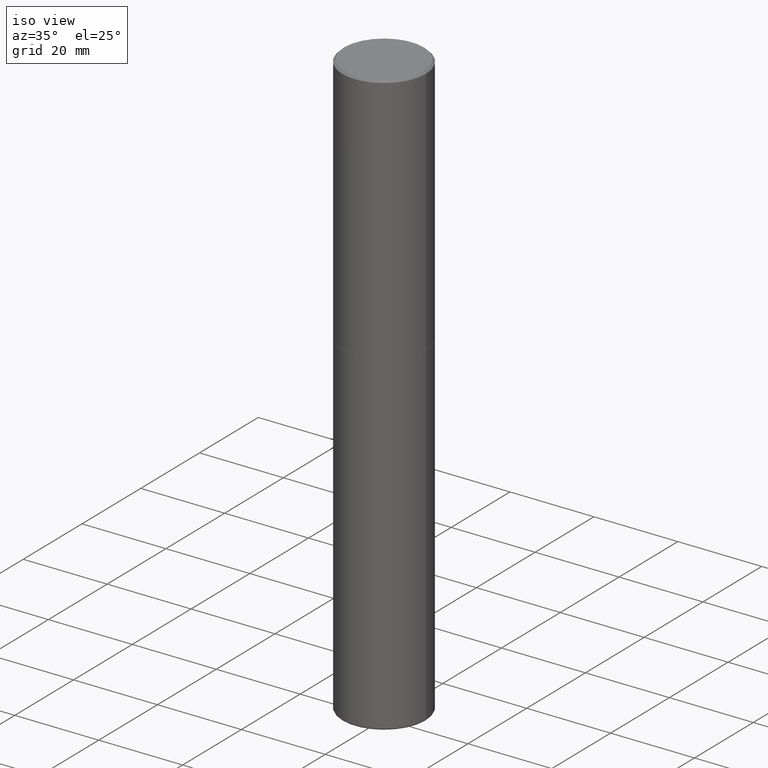
[diagram: clean part render]
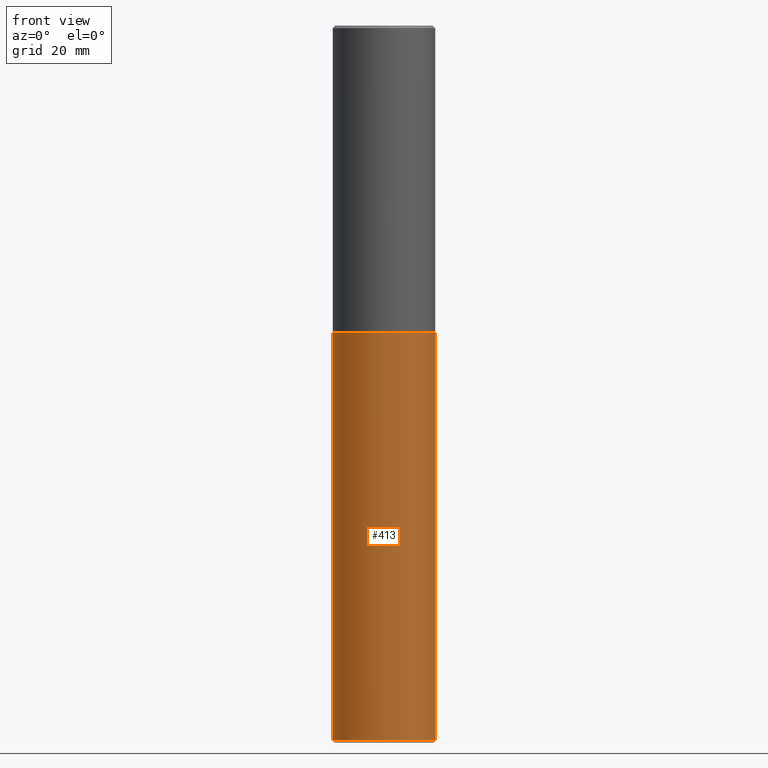
[diagram: tour spotlight — one face highlighted and labeled with its STEP entity id]
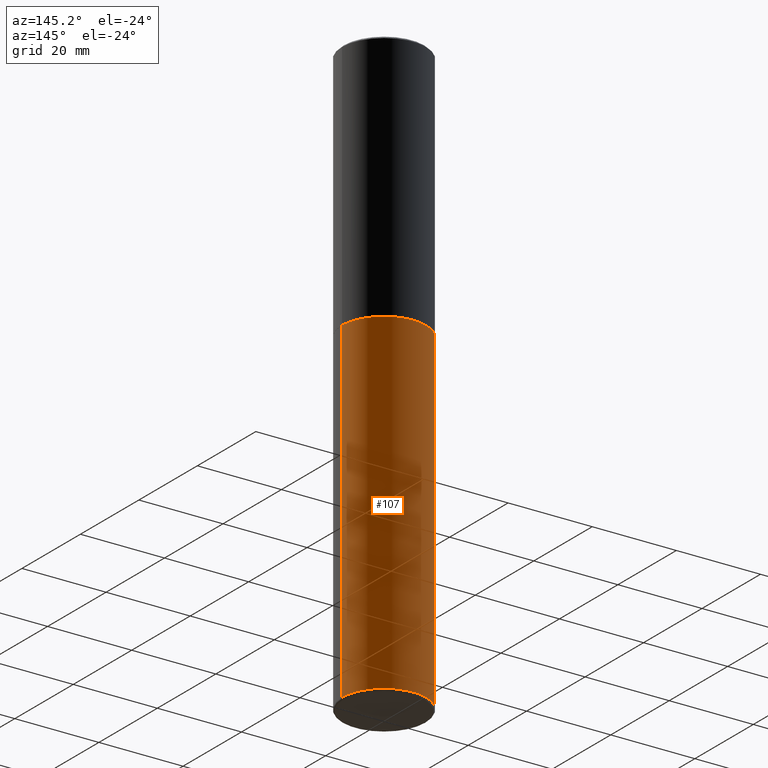
[diagram: tour spotlight — one face highlighted and labeled with its STEP entity id]
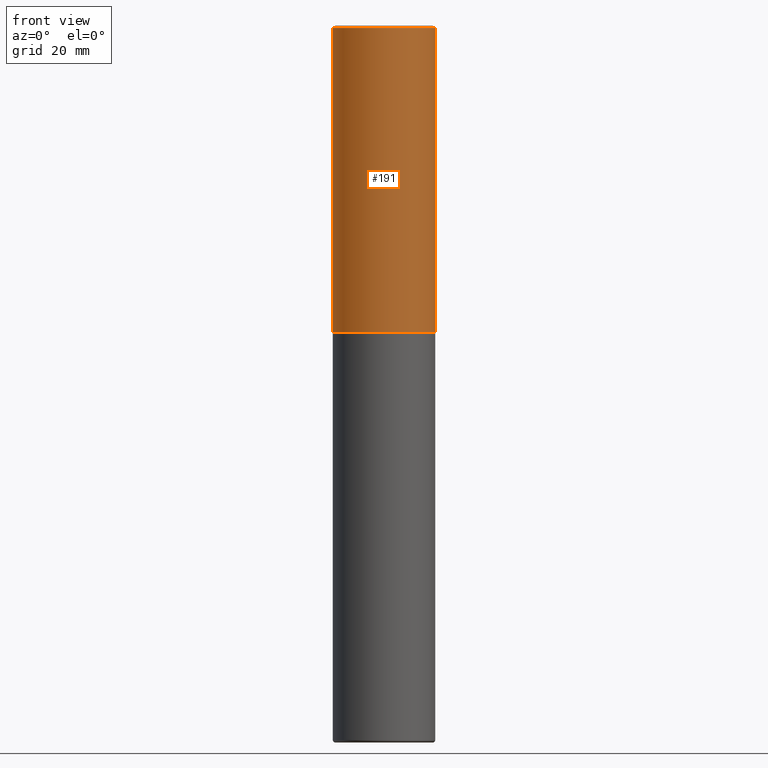
[diagram: tour spotlight — one face highlighted and labeled with its STEP entity id]
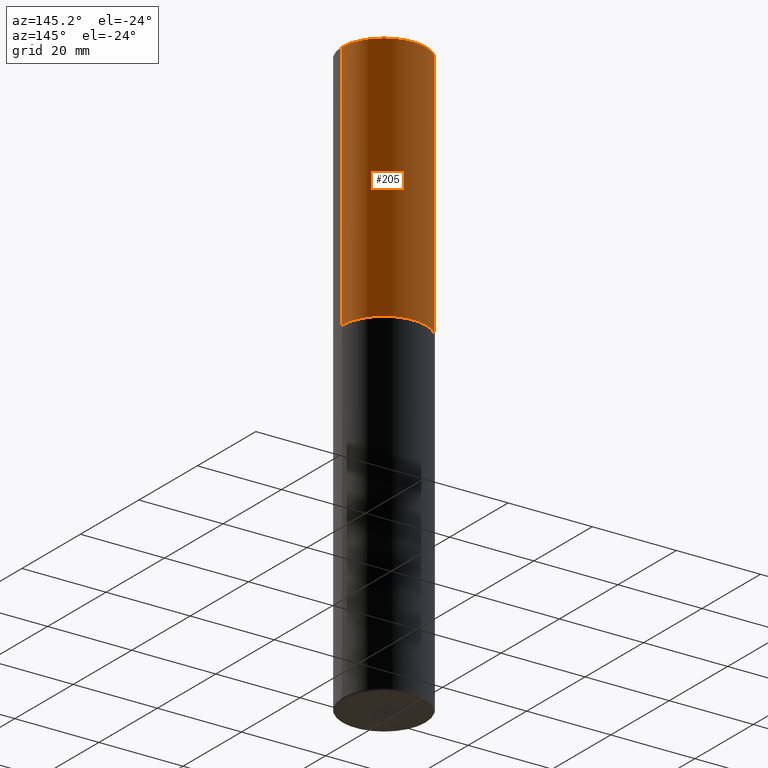
[diagram: tour spotlight — one face highlighted and labeled with its STEP entity id]
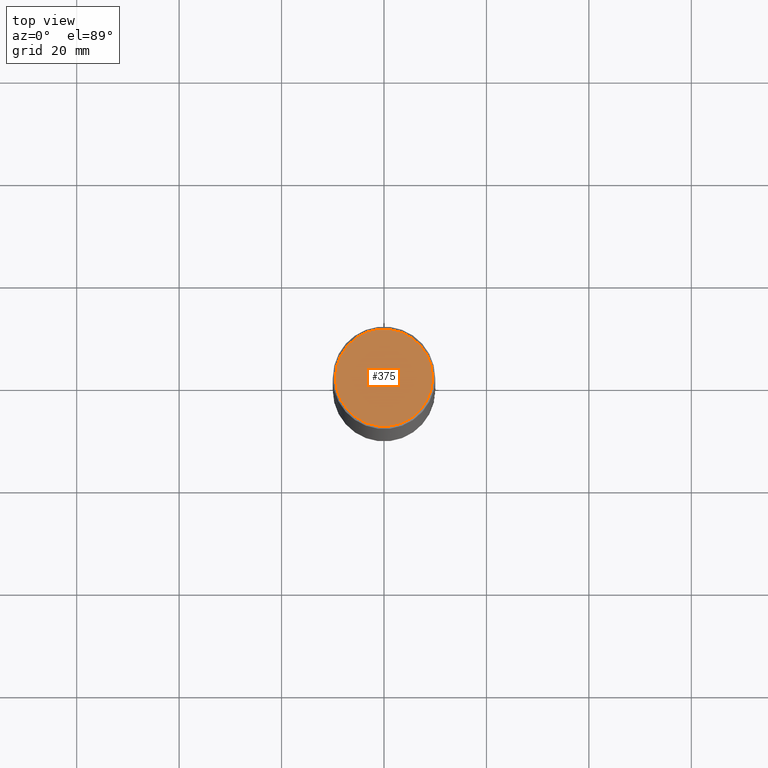
[diagram: tour spotlight — one face highlighted and labeled with its STEP entity id]
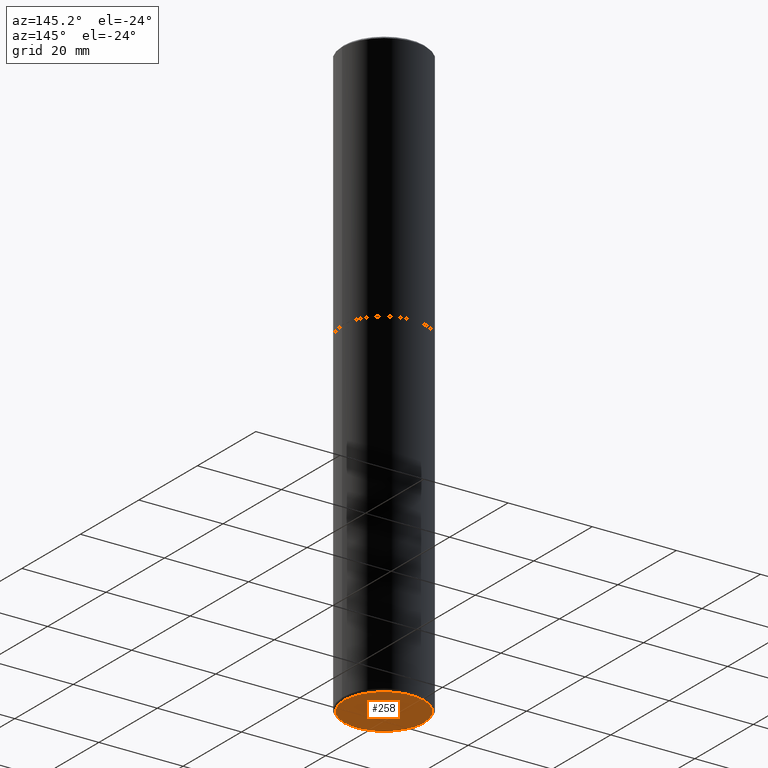
[diagram: tour spotlight — one face highlighted and labeled with its STEP entity id]
A machine part: a face-by-face anatomy tour. The part has 14 B-rep faces; the first image is the clean iso view, then the 6 largest visible faces are spotlighted one at a time (largest first), each with its STEP entity span.

Face 1 — front view, entity #413. In plain terms, the highlighted cylindrical surface (partial cylindrical patch) has radius 10 mm, axis along (-0, 0, 1).
Definition (entity closure, byte-faithful):
#5 = DIRECTION ( 'NONE',  ( -2.445468806185136877E-29, 3.491481338843145188E-15, 1.000000000000000000 ) ) ;
#7 = VECTOR ( 'NONE', #5, 39.37007874015748143 ) ;
#10 = LINE ( 'NONE', #264, #26 ) ;
#13 = CARTESIAN_POINT ( 'NONE',  ( -0.3937000000000000499, -1.091416418915034540E-14, -2.362200000000000077 ) ) ;
#14 = AXIS2_PLACEMENT_3D ( 'NONE', #82, #178, #246 ) ;
#17 = CARTESIAN_POINT ( 'NONE',  ( 1.343075923044938861E-28, -1.917556466106043760E-14, -5.492099999999999760 ) ) ;
#26 = VECTOR ( 'NONE', #105, 39.37007874015748143 ) ;
#42 = AXIS2_PLACEMENT_3D ( 'NONE', #204, #334, #398 ) ;
#60 = EDGE_CURVE ( 'NONE', #272, #321, #10, .T. ) ;
#69 = VERTEX_POINT ( 'NONE', #13 ) ;
#70 = ORIENTED_EDGE ( 'NONE', *, *, #118, .F. ) ;
#79 = VERTEX_POINT ( 'NONE', #117 ) ;
#82 = CARTESIAN_POINT ( 'NONE',  ( 5.776686413970529753E-29, -8.247577218615279626E-15, -2.362200000000000077 ) ) ;
#83 = ORIENTED_EDGE ( 'NONE', *, *, #177, .T. ) ;
#105 = DIRECTION ( 'NONE',  ( -2.445468806185136877E-29, 3.491481338843145188E-15, 1.000000000000000000 ) ) ;
#117 = CARTESIAN_POINT ( 'NONE',  ( -0.3936999999999999389, -1.637815791037292360E-14, -5.492099999999999760 ) ) ;
#118 = EDGE_CURVE ( 'NONE', #69, #321, #268, .T. ) ;
#163 = CARTESIAN_POINT ( 'NONE',  ( -0.3936999999999999389, 2.797406750687513998E-15, -1.936584745033356455E-29 ) ) ;
#177 = EDGE_CURVE ( 'NONE', #79, #272, #218, .T. ) ;
#178 = DIRECTION ( 'NONE',  ( -2.445468806185136597E-29, 3.491481338843145583E-15, 1.000000000000000000 ) ) ;
#179 = ORIENTED_EDGE ( 'NONE', *, *, #355, .F. ) ;
#198 = CARTESIAN_POINT ( 'NONE',  ( 0.3936999999999999389, -2.192475706726552397E-14, -5.492099999999999760 ) ) ;
#204 = CARTESIAN_POINT ( 'NONE',  ( 0.000000000000000000, 0.000000000000000000, 0.000000000000000000 ) ) ;
#218 = CIRCLE ( 'NONE', #414, 0.3936999999999999389 ) ;
#246 = DIRECTION ( 'NONE',  ( 1.000000000000000000, -6.982962677686267499E-15, 0.000000000000000000 ) ) ;
#259 = LINE ( 'NONE', #163, #7 ) ;
#264 = CARTESIAN_POINT ( 'NONE',  ( 0.3936999999999999389, -2.749192406205082822E-15, 1.919750796630859611E-29 ) ) ;
#268 = CIRCLE ( 'NONE', #14, 0.3937000000000000499 ) ;
#269 = EDGE_LOOP ( 'NONE', ( #179, #83, #309, #70 ) ) ;
#272 = VERTEX_POINT ( 'NONE', #198 ) ;
#294 = CYLINDRICAL_SURFACE ( 'NONE', #42, 0.3936999999999999389 ) ;
#309 = ORIENTED_EDGE ( 'NONE', *, *, #60, .T. ) ;
#321 = VERTEX_POINT ( 'NONE', #397 ) ;
#334 = DIRECTION ( 'NONE',  ( -2.445468806185136597E-29, 3.491481338843145583E-15, 1.000000000000000000 ) ) ;
#355 = EDGE_CURVE ( 'NONE', #79, #69, #259, .T. ) ;
#365 = FACE_OUTER_BOUND ( 'NONE', #269, .T. ) ;
#387 = DIRECTION ( 'NONE',  ( -2.445468806185136597E-29, 3.491481338843145583E-15, 1.000000000000000000 ) ) ;
#397 = CARTESIAN_POINT ( 'NONE',  ( 0.3937000000000000499, -1.099676962482036284E-14, -2.362200000000000077 ) ) ;
#398 = DIRECTION ( 'NONE',  ( 1.000000000000000000, -6.982962677686266711E-15, 4.876176775795935793E-29 ) ) ;
#412 = DIRECTION ( 'NONE',  ( 1.000000000000000000, -6.982962677686269866E-15, 0.000000000000000000 ) ) ;
#413 = ADVANCED_FACE ( 'NONE', ( #365 ), #294, .T. ) ;
#414 = AXIS2_PLACEMENT_3D ( 'NONE', #17, #387, #412 ) ;

Face 2 — auxiliary view, entity #107. In plain terms, the highlighted cylindrical surface (partial cylindrical patch) has radius 10 mm, axis along (-0, 0, 1).
Definition (entity closure, byte-faithful):
#5 = DIRECTION ( 'NONE',  ( -2.445468806185136877E-29, 3.491481338843145188E-15, 1.000000000000000000 ) ) ;
#7 = VECTOR ( 'NONE', #5, 39.37007874015748143 ) ;
#10 = LINE ( 'NONE', #264, #26 ) ;
#13 = CARTESIAN_POINT ( 'NONE',  ( -0.3937000000000000499, -1.091416418915034540E-14, -2.362200000000000077 ) ) ;
#18 = ORIENTED_EDGE ( 'NONE', *, *, #60, .F. ) ;
#20 = CARTESIAN_POINT ( 'NONE',  ( 5.776686413970529753E-29, -8.247577218615279626E-15, -2.362200000000000077 ) ) ;
#26 = VECTOR ( 'NONE', #105, 39.37007874015748143 ) ;
#45 = DIRECTION ( 'NONE',  ( 1.000000000000000000, -6.982962677686269866E-15, 0.000000000000000000 ) ) ;
#57 = AXIS2_PLACEMENT_3D ( 'NONE', #78, #344, #45 ) ;
#60 = EDGE_CURVE ( 'NONE', #272, #321, #10, .T. ) ;
#69 = VERTEX_POINT ( 'NONE', #13 ) ;
#78 = CARTESIAN_POINT ( 'NONE',  ( 1.343075923044938861E-28, -1.917556466106043760E-14, -5.492099999999999760 ) ) ;
#79 = VERTEX_POINT ( 'NONE', #117 ) ;
#81 = FACE_OUTER_BOUND ( 'NONE', #314, .T. ) ;
#105 = DIRECTION ( 'NONE',  ( -2.445468806185136877E-29, 3.491481338843145188E-15, 1.000000000000000000 ) ) ;
#107 = ADVANCED_FACE ( 'NONE', ( #81 ), #354, .T. ) ;
#117 = CARTESIAN_POINT ( 'NONE',  ( -0.3936999999999999389, -1.637815791037292360E-14, -5.492099999999999760 ) ) ;
#134 = AXIS2_PLACEMENT_3D ( 'NONE', #20, #146, #182 ) ;
#145 = EDGE_CURVE ( 'NONE', #321, #69, #326, .T. ) ;
#146 = DIRECTION ( 'NONE',  ( -2.445468806185136597E-29, 3.491481338843145583E-15, 1.000000000000000000 ) ) ;
#151 = DIRECTION ( 'NONE',  ( -2.445468806185136597E-29, 3.491481338843145583E-15, 1.000000000000000000 ) ) ;
#155 = EDGE_CURVE ( 'NONE', #272, #79, #384, .T. ) ;
#163 = CARTESIAN_POINT ( 'NONE',  ( -0.3936999999999999389, 2.797406750687513998E-15, -1.936584745033356455E-29 ) ) ;
#182 = DIRECTION ( 'NONE',  ( 1.000000000000000000, -6.982962677686267499E-15, 0.000000000000000000 ) ) ;
#192 = AXIS2_PLACEMENT_3D ( 'NONE', #215, #151, #388 ) ;
#198 = CARTESIAN_POINT ( 'NONE',  ( 0.3936999999999999389, -2.192475706726552397E-14, -5.492099999999999760 ) ) ;
#215 = CARTESIAN_POINT ( 'NONE',  ( 0.000000000000000000, 0.000000000000000000, 0.000000000000000000 ) ) ;
#243 = ORIENTED_EDGE ( 'NONE', *, *, #145, .F. ) ;
#259 = LINE ( 'NONE', #163, #7 ) ;
#264 = CARTESIAN_POINT ( 'NONE',  ( 0.3936999999999999389, -2.749192406205082822E-15, 1.919750796630859611E-29 ) ) ;
#272 = VERTEX_POINT ( 'NONE', #198 ) ;
#314 = EDGE_LOOP ( 'NONE', ( #380, #316, #243, #18 ) ) ;
#316 = ORIENTED_EDGE ( 'NONE', *, *, #355, .T. ) ;
#321 = VERTEX_POINT ( 'NONE', #397 ) ;
#326 = CIRCLE ( 'NONE', #134, 0.3937000000000000499 ) ;
#344 = DIRECTION ( 'NONE',  ( -2.445468806185136597E-29, 3.491481338843145583E-15, 1.000000000000000000 ) ) ;
#354 = CYLINDRICAL_SURFACE ( 'NONE', #192, 0.3936999999999999389 ) ;
#355 = EDGE_CURVE ( 'NONE', #79, #69, #259, .T. ) ;
#380 = ORIENTED_EDGE ( 'NONE', *, *, #155, .T. ) ;
#384 = CIRCLE ( 'NONE', #57, 0.3936999999999999389 ) ;
#388 = DIRECTION ( 'NONE',  ( 1.000000000000000000, -6.982962677686266711E-15, 4.876176775795935793E-29 ) ) ;
#397 = CARTESIAN_POINT ( 'NONE',  ( 0.3937000000000000499, -1.099676962482036284E-14, -2.362200000000000077 ) ) ;

Face 3 — front view, entity #191. In plain terms, the highlighted cylindrical surface (partial cylindrical patch) has radius 10 mm, axis along (-0, 0, 1).
Definition (entity closure, byte-faithful):
#9 = EDGE_CURVE ( 'NONE', #236, #379, #342, .T. ) ;
#30 = DIRECTION ( 'NONE',  ( -2.445468806185136877E-29, 3.491481338843145188E-15, 1.000000000000000000 ) ) ;
#34 = CARTESIAN_POINT ( 'NONE',  ( 0.3937000000000001609, -2.749192406205084400E-15, 1.919750796630860732E-29 ) ) ;
#51 = CARTESIAN_POINT ( 'NONE',  ( 0.000000000000000000, 0.000000000000000000, 0.000000000000000000 ) ) ;
#68 = DIRECTION ( 'NONE',  ( -2.445468806185136597E-29, 3.491481338843145583E-15, 1.000000000000000000 ) ) ;
#76 = AXIS2_PLACEMENT_3D ( 'NONE', #196, #68, #109 ) ;
#94 = CIRCLE ( 'NONE', #362, 0.3937000000000000499 ) ;
#109 = DIRECTION ( 'NONE',  ( 1.000000000000000000, -6.982962677686265922E-15, 0.000000000000000000 ) ) ;
#132 = DIRECTION ( 'NONE',  ( -2.445468806185136597E-29, 3.491481338843145583E-15, 1.000000000000000000 ) ) ;
#141 = CIRCLE ( 'NONE', #76, 0.3937000000000002720 ) ;
#147 = ORIENTED_EDGE ( 'NONE', *, *, #283, .T. ) ;
#154 = FACE_OUTER_BOUND ( 'NONE', #406, .T. ) ;
#156 = CARTESIAN_POINT ( 'NONE',  ( 4.890937612370294178E-31, -6.982962677686321191E-17, -0.02000000000000008715 ) ) ;
#160 = CARTESIAN_POINT ( 'NONE',  ( -0.3937000000000000499, 2.679362779428219918E-15, -0.02000000000000008715 ) ) ;
#164 = VECTOR ( 'NONE', #30, 39.37007874015748143 ) ;
#174 = VERTEX_POINT ( 'NONE', #210 ) ;
#176 = AXIS2_PLACEMENT_3D ( 'NONE', #51, #289, #330 ) ;
#191 = ADVANCED_FACE ( 'NONE', ( #154 ), #253, .T. ) ;
#195 = DIRECTION ( 'NONE',  ( 1.000000000000000000, -6.982962677686265922E-15, 0.000000000000000000 ) ) ;
#196 = CARTESIAN_POINT ( 'NONE',  ( 5.774240945164344150E-29, -8.244085737276435042E-15, -2.361199999999999743 ) ) ;
#210 = CARTESIAN_POINT ( 'NONE',  ( 0.3937000000000000499, -2.770807688499515734E-15, -0.02000000000000008715 ) ) ;
#236 = VERTEX_POINT ( 'NONE', #392 ) ;
#253 = CYLINDRICAL_SURFACE ( 'NONE', #176, 0.3937000000000001609 ) ;
#271 = DIRECTION ( 'NONE',  ( -2.445468806185136877E-29, 3.491481338843145188E-15, 1.000000000000000000 ) ) ;
#283 = EDGE_CURVE ( 'NONE', #305, #174, #336, .T. ) ;
#289 = DIRECTION ( 'NONE',  ( -2.445468806185136597E-29, 3.491481338843145583E-15, 1.000000000000000000 ) ) ;
#297 = CARTESIAN_POINT ( 'NONE',  ( -0.3937000000000001609, 2.797406750687515575E-15, -1.936584745033357296E-29 ) ) ;
#305 = VERTEX_POINT ( 'NONE', #360 ) ;
#320 = VECTOR ( 'NONE', #271, 39.37007874015748143 ) ;
#330 = DIRECTION ( 'NONE',  ( 1.000000000000000000, -6.982962677686266711E-15, 4.876176775795935793E-29 ) ) ;
#335 = EDGE_CURVE ( 'NONE', #379, #174, #94, .T. ) ;
#336 = LINE ( 'NONE', #34, #164 ) ;
#341 = ORIENTED_EDGE ( 'NONE', *, *, #9, .F. ) ;
#342 = LINE ( 'NONE', #297, #320 ) ;
#360 = CARTESIAN_POINT ( 'NONE',  ( 0.3937000000000002720, -1.099327814348151984E-14, -2.361199999999999743 ) ) ;
#362 = AXIS2_PLACEMENT_3D ( 'NONE', #156, #132, #195 ) ;
#378 = ORIENTED_EDGE ( 'NONE', *, *, #395, .T. ) ;
#379 = VERTEX_POINT ( 'NONE', #160 ) ;
#392 = CARTESIAN_POINT ( 'NONE',  ( -0.3937000000000003830, -1.359550931339130834E-15, -2.361199999999999743 ) ) ;
#395 = EDGE_CURVE ( 'NONE', #236, #305, #141, .T. ) ;
#406 = EDGE_LOOP ( 'NONE', ( #341, #378, #147, #409 ) ) ;
#409 = ORIENTED_EDGE ( 'NONE', *, *, #335, .F. ) ;

Face 4 — auxiliary view, entity #205. In plain terms, the highlighted cylindrical surface (partial cylindrical patch) has radius 10 mm, axis along (-0, 0, 1).
Definition (entity closure, byte-faithful):
#9 = EDGE_CURVE ( 'NONE', #236, #379, #342, .T. ) ;
#30 = DIRECTION ( 'NONE',  ( -2.445468806185136877E-29, 3.491481338843145188E-15, 1.000000000000000000 ) ) ;
#34 = CARTESIAN_POINT ( 'NONE',  ( 0.3937000000000001609, -2.749192406205084400E-15, 1.919750796630860732E-29 ) ) ;
#37 = EDGE_LOOP ( 'NONE', ( #186, #239, #235, #301 ) ) ;
#88 = DIRECTION ( 'NONE',  ( 1.000000000000000000, -6.982962677686265922E-15, 0.000000000000000000 ) ) ;
#89 = DIRECTION ( 'NONE',  ( 1.000000000000000000, -6.982962677686266711E-15, 4.876176775795935793E-29 ) ) ;
#90 = FACE_OUTER_BOUND ( 'NONE', #37, .T. ) ;
#119 = CARTESIAN_POINT ( 'NONE',  ( 0.000000000000000000, 0.000000000000000000, 0.000000000000000000 ) ) ;
#123 = CYLINDRICAL_SURFACE ( 'NONE', #299, 0.3937000000000001609 ) ;
#160 = CARTESIAN_POINT ( 'NONE',  ( -0.3937000000000000499, 2.679362779428219918E-15, -0.02000000000000008715 ) ) ;
#164 = VECTOR ( 'NONE', #30, 39.37007874015748143 ) ;
#174 = VERTEX_POINT ( 'NONE', #210 ) ;
#186 = ORIENTED_EDGE ( 'NONE', *, *, #234, .T. ) ;
#189 = DIRECTION ( 'NONE',  ( -2.445468806185136597E-29, 3.491481338843145583E-15, 1.000000000000000000 ) ) ;
#205 = ADVANCED_FACE ( 'NONE', ( #90 ), #123, .T. ) ;
#210 = CARTESIAN_POINT ( 'NONE',  ( 0.3937000000000000499, -2.770807688499515734E-15, -0.02000000000000008715 ) ) ;
#214 = EDGE_CURVE ( 'NONE', #174, #379, #310, .T. ) ;
#223 = CIRCLE ( 'NONE', #403, 0.3937000000000002720 ) ;
#234 = EDGE_CURVE ( 'NONE', #305, #236, #223, .T. ) ;
#235 = ORIENTED_EDGE ( 'NONE', *, *, #214, .F. ) ;
#236 = VERTEX_POINT ( 'NONE', #392 ) ;
#239 = ORIENTED_EDGE ( 'NONE', *, *, #9, .T. ) ;
#241 = AXIS2_PLACEMENT_3D ( 'NONE', #287, #248, #254 ) ;
#248 = DIRECTION ( 'NONE',  ( -2.445468806185136597E-29, 3.491481338843145583E-15, 1.000000000000000000 ) ) ;
#251 = DIRECTION ( 'NONE',  ( -2.445468806185136597E-29, 3.491481338843145583E-15, 1.000000000000000000 ) ) ;
#254 = DIRECTION ( 'NONE',  ( 1.000000000000000000, -6.982962677686265922E-15, 0.000000000000000000 ) ) ;
#271 = DIRECTION ( 'NONE',  ( -2.445468806185136877E-29, 3.491481338843145188E-15, 1.000000000000000000 ) ) ;
#283 = EDGE_CURVE ( 'NONE', #305, #174, #336, .T. ) ;
#287 = CARTESIAN_POINT ( 'NONE',  ( 4.890937612370294178E-31, -6.982962677686321191E-17, -0.02000000000000008715 ) ) ;
#297 = CARTESIAN_POINT ( 'NONE',  ( -0.3937000000000001609, 2.797406750687515575E-15, -1.936584745033357296E-29 ) ) ;
#299 = AXIS2_PLACEMENT_3D ( 'NONE', #119, #189, #89 ) ;
#301 = ORIENTED_EDGE ( 'NONE', *, *, #283, .F. ) ;
#305 = VERTEX_POINT ( 'NONE', #360 ) ;
#310 = CIRCLE ( 'NONE', #241, 0.3937000000000000499 ) ;
#320 = VECTOR ( 'NONE', #271, 39.37007874015748143 ) ;
#336 = LINE ( 'NONE', #34, #164 ) ;
#342 = LINE ( 'NONE', #297, #320 ) ;
#360 = CARTESIAN_POINT ( 'NONE',  ( 0.3937000000000002720, -1.099327814348151984E-14, -2.361199999999999743 ) ) ;
#379 = VERTEX_POINT ( 'NONE', #160 ) ;
#392 = CARTESIAN_POINT ( 'NONE',  ( -0.3937000000000003830, -1.359550931339130834E-15, -2.361199999999999743 ) ) ;
#403 = AXIS2_PLACEMENT_3D ( 'NONE', #418, #251, #88 ) ;
#418 = CARTESIAN_POINT ( 'NONE',  ( 5.774240945164344150E-29, -8.244085737276435042E-15, -2.361199999999999743 ) ) ;

Face 5 — top view, entity #375. In plain terms, the highlighted planar face has unit normal (0, -0, -1).
Definition (entity closure, byte-faithful):
#46 = VERTEX_POINT ( 'NONE', #266 ) ;
#66 = DIRECTION ( 'NONE',  ( 2.438088387897960049E-29, -3.491481338843145188E-15, -1.000000000000000000 ) ) ;
#92 = CARTESIAN_POINT ( 'NONE',  ( 5.428027354543142984E-45, -7.749784485978325769E-31, -2.219626494852213988E-16 ) ) ;
#113 = ORIENTED_EDGE ( 'NONE', *, *, #317, .T. ) ;
#129 = CARTESIAN_POINT ( 'NONE',  ( 2.609533152651359776E-15, 0.3737000000000003097, -1.415747901068295320E-15 ) ) ;
#142 = CARTESIAN_POINT ( 'NONE',  ( 5.428027354543142984E-45, -7.749784485978325769E-31, -2.219626494852213988E-16 ) ) ;
#143 = ORIENTED_EDGE ( 'NONE', *, *, #187, .T. ) ;
#159 = CARTESIAN_POINT ( 'NONE',  ( 0.3737000000000003097, -2.667287895133369937E-15, -2.219626494852029345E-16 ) ) ;
#173 = CIRCLE ( 'NONE', #261, 0.3737000000000003097 ) ;
#187 = EDGE_CURVE ( 'NONE', #312, #46, #270, .T. ) ;
#193 = AXIS2_PLACEMENT_3D ( 'NONE', #129, #66, #200 ) ;
#200 = DIRECTION ( 'NONE',  ( -1.000000000000000000, 6.982962677686265922E-15, -4.876176775795935793E-29 ) ) ;
#221 = FACE_OUTER_BOUND ( 'NONE', #233, .T. ) ;
#233 = EDGE_LOOP ( 'NONE', ( #113, #143 ) ) ;
#256 = DIRECTION ( 'NONE',  ( 1.000000000000000000, -6.982962677686266711E-15, 4.877734241229871763E-29 ) ) ;
#261 = AXIS2_PLACEMENT_3D ( 'NONE', #92, #367, #256 ) ;
#266 = CARTESIAN_POINT ( 'NONE',  ( -0.3737000000000003097, 2.644447966039789847E-15, -2.219626494852397645E-16 ) ) ;
#270 = CIRCLE ( 'NONE', #278, 0.3737000000000003097 ) ;
#278 = AXIS2_PLACEMENT_3D ( 'NONE', #142, #381, #324 ) ;
#312 = VERTEX_POINT ( 'NONE', #159 ) ;
#317 = EDGE_CURVE ( 'NONE', #46, #312, #173, .T. ) ;
#324 = DIRECTION ( 'NONE',  ( 1.000000000000000000, -6.982962677686266711E-15, 4.877734241229871763E-29 ) ) ;
#367 = DIRECTION ( 'NONE',  ( -2.445468806185136597E-29, 3.491481338843145583E-15, 1.000000000000000000 ) ) ;
#373 = PLANE ( 'NONE',  #193 ) ;
#375 = ADVANCED_FACE ( 'NONE', ( #221 ), #373, .F. ) ;
#381 = DIRECTION ( 'NONE',  ( -2.445468806185136597E-29, 3.491481338843145583E-15, 1.000000000000000000 ) ) ;

Face 6 — auxiliary view, entity #258. In plain terms, the highlighted planar face has unit normal (0, -0, -1).
Definition (entity closure, byte-faithful):
#52 = AXIS2_PLACEMENT_3D ( 'NONE', #391, #86, #394 ) ;
#56 = PLANE ( 'NONE',  #152 ) ;
#59 = DIRECTION ( 'NONE',  ( -1.000000000000000000, 6.982962677686265922E-15, -4.876176775795935793E-29 ) ) ;
#64 = VERTEX_POINT ( 'NONE', #228 ) ;
#65 = VERTEX_POINT ( 'NONE', #171 ) ;
#77 = ORIENTED_EDGE ( 'NONE', *, *, #227, .F. ) ;
#86 = DIRECTION ( 'NONE',  ( -2.445468806185136597E-29, 3.491481338843145583E-15, 1.000000000000000000 ) ) ;
#95 = FACE_OUTER_BOUND ( 'NONE', #303, .T. ) ;
#115 = CIRCLE ( 'NONE', #52, 0.3739999999999999991 ) ;
#121 = CIRCLE ( 'NONE', #249, 0.3739999999999999991 ) ;
#130 = EDGE_CURVE ( 'NONE', #64, #65, #121, .T. ) ;
#131 = CARTESIAN_POINT ( 'NONE',  ( 1.347893496593123646E-28, -1.924434684343564878E-14, -5.511800000000000033 ) ) ;
#152 = AXIS2_PLACEMENT_3D ( 'NONE', #131, #224, #59 ) ;
#171 = CARTESIAN_POINT ( 'NONE',  ( 0.3739999999999999991, -2.185597488489031278E-14, -5.511800000000000033 ) ) ;
#172 = ORIENTED_EDGE ( 'NONE', *, *, #130, .F. ) ;
#224 = DIRECTION ( 'NONE',  ( 2.438088387897960049E-29, -3.491481338843145188E-15, -1.000000000000000000 ) ) ;
#227 = EDGE_CURVE ( 'NONE', #65, #64, #115, .T. ) ;
#228 = CARTESIAN_POINT ( 'NONE',  ( -0.3739999999999999991, -1.648253746103290003E-14, -5.511800000000000033 ) ) ;
#249 = AXIS2_PLACEMENT_3D ( 'NONE', #315, #282, #275 ) ;
#258 = ADVANCED_FACE ( 'NONE', ( #95 ), #56, .T. ) ;
#275 = DIRECTION ( 'NONE',  ( 1.000000000000000000, -6.982962677686265133E-15, 0.000000000000000000 ) ) ;
#282 = DIRECTION ( 'NONE',  ( -2.445468806185136597E-29, 3.491481338843145583E-15, 1.000000000000000000 ) ) ;
#303 = EDGE_LOOP ( 'NONE', ( #77, #172 ) ) ;
#315 = CARTESIAN_POINT ( 'NONE',  ( 1.347893496593123646E-28, -1.924434684343564878E-14, -5.511800000000000033 ) ) ;
#391 = CARTESIAN_POINT ( 'NONE',  ( 1.347893496593123646E-28, -1.924434684343564878E-14, -5.511800000000000033 ) ) ;
#394 = DIRECTION ( 'NONE',  ( 1.000000000000000000, -6.982962677686265133E-15, 0.000000000000000000 ) ) ;